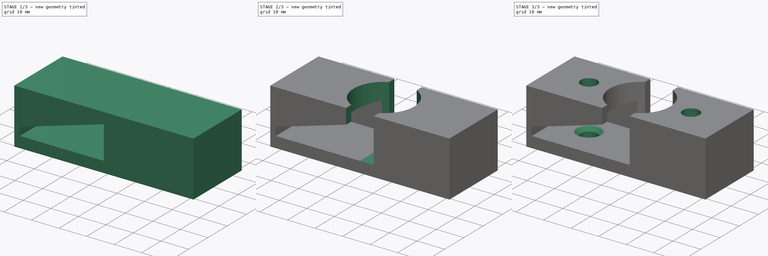
[diagram: build sequence overview — one tinted view per stage of 3, left to right]
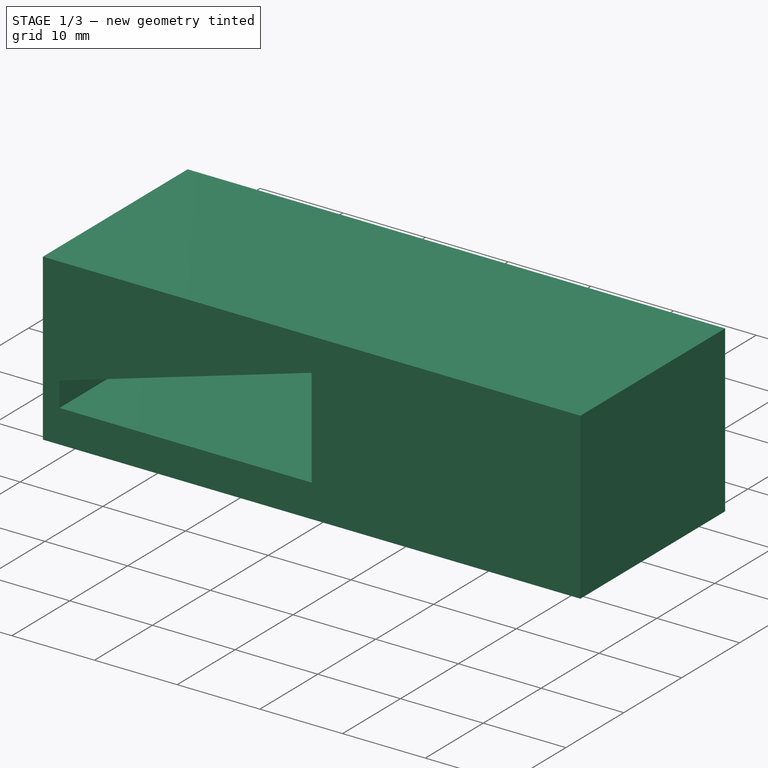
[diagram: stage 1 of 3 — iso view after this stage's code; geometry added in this stage tinted green]
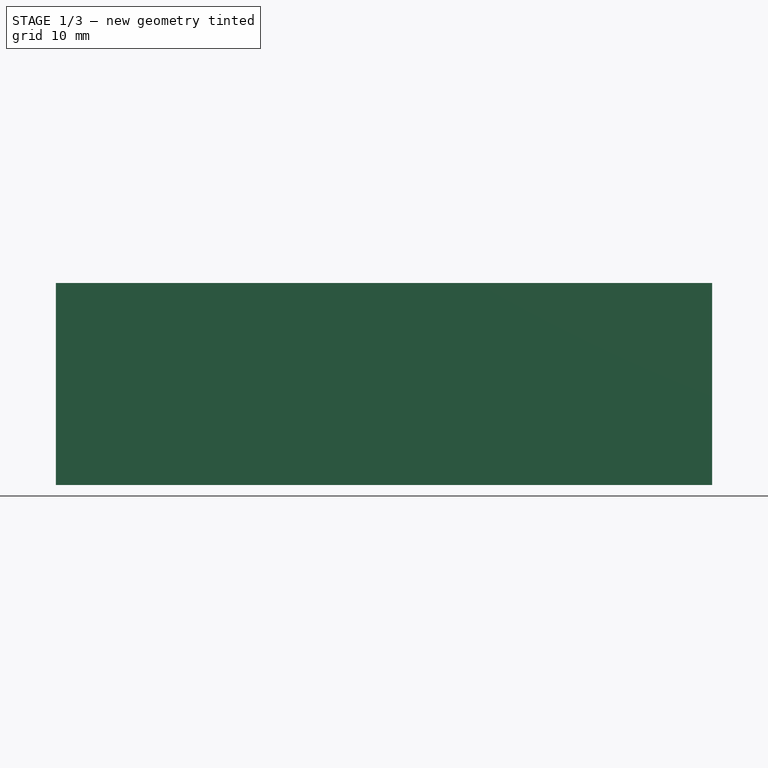
[diagram: stage 1 of 3 — front view after this stage's code; geometry added in this stage tinted green]
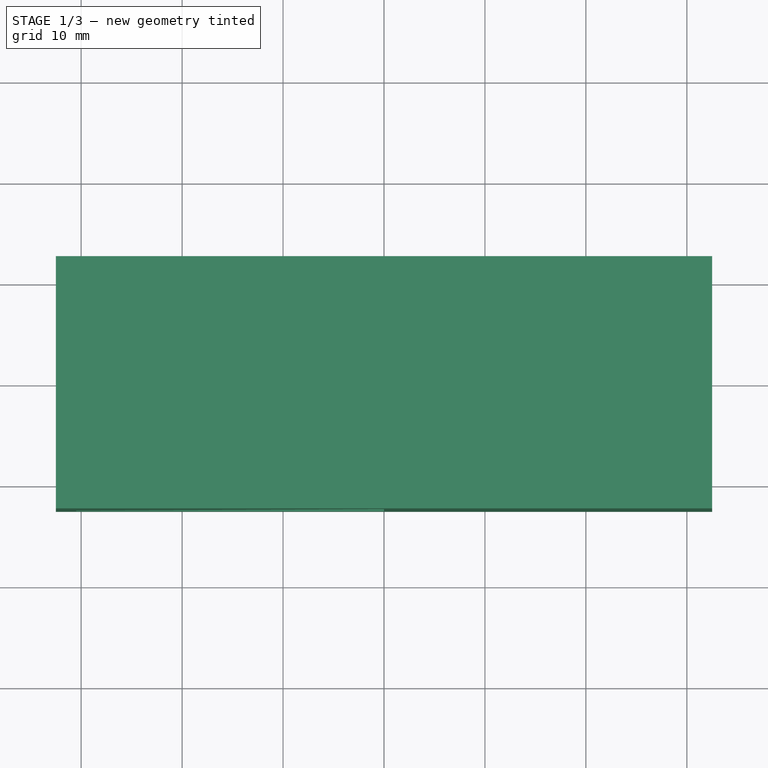
[diagram: stage 1 of 3 — top view after this stage's code; geometry added in this stage tinted green]
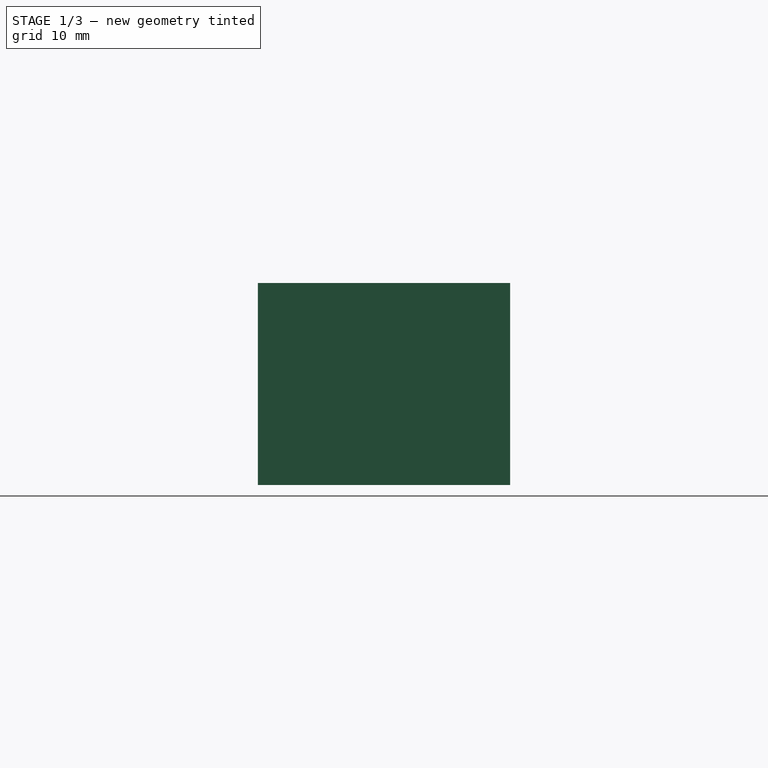
[diagram: stage 1 of 3 — right view after this stage's code; geometry added in this stage tinted green]
FCSTD DOCUMENT  (FreeCAD 0.20R29410 (Git))
Label: Reel_Holder_Symetric_Twist_Parametric
License: All rights reserved
LicenseURL: http://en.wikipedia.org/wiki/All_rights_reserved
objects: Sketcher::SketchObject×6, PartDesign::Pocket×5, App::Part×1, PartDesign::Pad×1, Spreadsheet::Sheet×1, PartDesign::Chamfer×1, PartDesign::Body×1
note: 21 computed .brp shape members not serialized (recipe doc carries the construction recipe); baked Part::Feature solids carry a one-line shape summary decoded from their .brp

FEATURE [App::Part] Part
  Origin = -> Origin
FEATURE [Sketcher::SketchObject] Sketch  label="Sketch_Body"
  FullyConstrained = true
  MapMode = 5
  Support = -> [XY_Plane001]
  expr: Constraints[10] = <<pram>>.Body_Width
  expr: Constraints[9] = <<pram>>.Body_Length
  sketch-geometry (4):
    g0: LineSegment StartX=-32.5 StartY=12.4995 StartZ=0 EndX=32.5 EndY=12.4995 EndZ=0
    g1: LineSegment StartX=32.5 StartY=12.4995 StartZ=0 EndX=32.5 EndY=-12.4995 EndZ=0
    g2: LineSegment StartX=32.5 StartY=-12.4995 StartZ=0 EndX=-32.5 EndY=-12.4995 EndZ=0
    g3: LineSegment StartX=-32.5 StartY=-12.4995 StartZ=0 EndX=-32.5 EndY=12.4995 EndZ=0
  constraints (11):
    c: Coincident(g0,g1)
    c: Coincident(g1,g2)
    c: Coincident(g2,g3)
    c: Coincident(g3,g0)
    c: Horizontal(g0)
    c: Horizontal(g2)
    c: Vertical(g1)
    c: Vertical(g3)
    c: Symmetric(g0,g1,g-1)
    c: DistanceX(g0,g0) = 65
    c: DistanceY(g1,g1) = 24.999
FEATURE [PartDesign::Pad] Pad  label="Pad_Body"
  Direction = (0,0,1)
  Length = 19.999
  Length2 = 10
  Profile = -> Sketch
  ReferenceAxis = -> Sketch [N_Axis]
  Type = 0
  expr: Length = <<pram>>.Body_Height
FEATURE [Sketcher::SketchObject] Sketch001  label="Sketch_Front_Angle_Breach"
  AttachmentOffset = pos=(0,0,-8.4997) rot=(0,0,1;0rad)
  FullyConstrained = true
  MapMode = 5
  Placement = pos=(0,8.4997,1.9e-15) rot=(1,0,0;1.5708rad)
  Support = -> [XZ_Plane001]
  expr: .AttachmentOffset.Base.z = -(<<pram>>.Body_Width / 2 - <<pram>>.Wall_Thickness)
  expr: Constraints[10] = <<pram>>.Body_Height - <<pram>>.Wall_Thickness
  expr: Constraints[11] = <<pram>>.Twist_Opening_Horiz_From_Origin
  expr: Constraints[8] = <<pram>>.Twist_Opening_Vert_Small_Side_Height
  expr: Constraints[9] = <<pram>>.Wall_Thickness
  sketch-geometry (4):
    g0: LineSegment StartX=0 StartY=3.9998 StartZ=0 EndX=-30.5 EndY=3.9998 EndZ=0
    g1: LineSegment StartX=-30.5 StartY=3.9998 StartZ=0 EndX=-30.5 EndY=6.9996 EndZ=0
    g2: LineSegment StartX=-30.5 StartY=6.9996 StartZ=0 EndX=0 EndY=15.9992 EndZ=0
    g3: LineSegment StartX=0 StartY=15.9992 StartZ=0 EndX=0 EndY=3.9998 EndZ=0
  constraints (12):
    c: PointOnObject(g0,g-2)
    c: Horizontal(g0)
    c: Coincident(g0,g1)
    c: Coincident(g1,g2)
    c: PointOnObject(g2,g-2)
    c: Coincident(g2,g3)
    c: Coincident(g3,g0)
    c: Vertical(g0,g1)
    c: DistanceY(g1,g1) = 2.9998
    c: DistanceY(g-1,g0) = 3.9998
    c: DistanceY(g-1,g2) = 15.9992
    c: DistanceX(g0,g-1) = 30.5
FEATURE [PartDesign::Pocket] Pocket  label="Pocket_Front_Angle_Breach"
  BaseFeature = -> Pad
  Direction = (0,1,2e-16)
  Length = 20.9992
  Length2 = 5
  Profile = -> Sketch001
  ReferenceAxis = -> Sketch001 [N_Axis]
  Reversed = true
  Type = 0
  expr: Length = <<pram>>.Body_Width - <<pram>>.Wall_Thickness
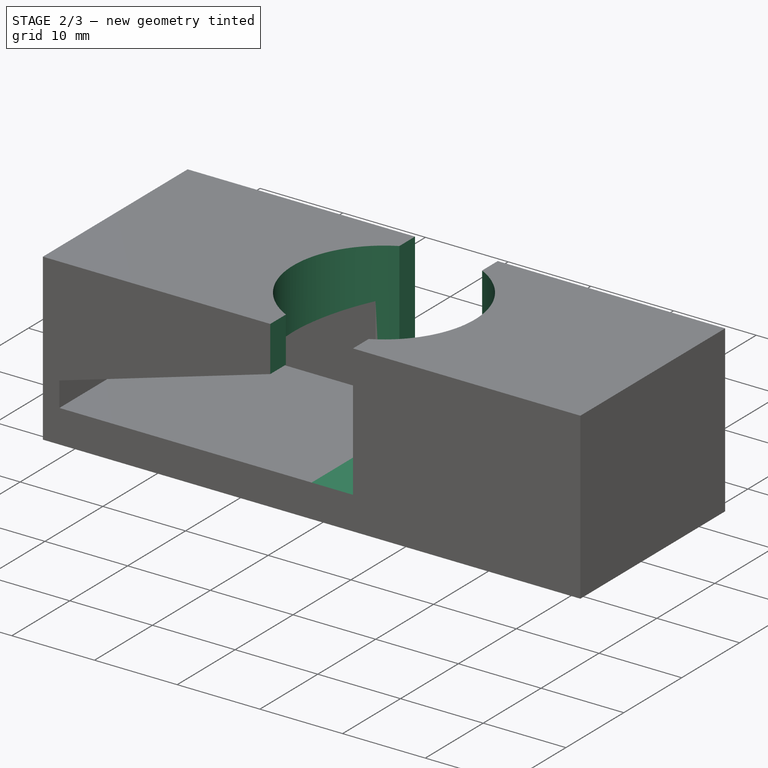
[diagram: stage 2 of 3 — iso view after this stage's code; geometry added in this stage tinted green]
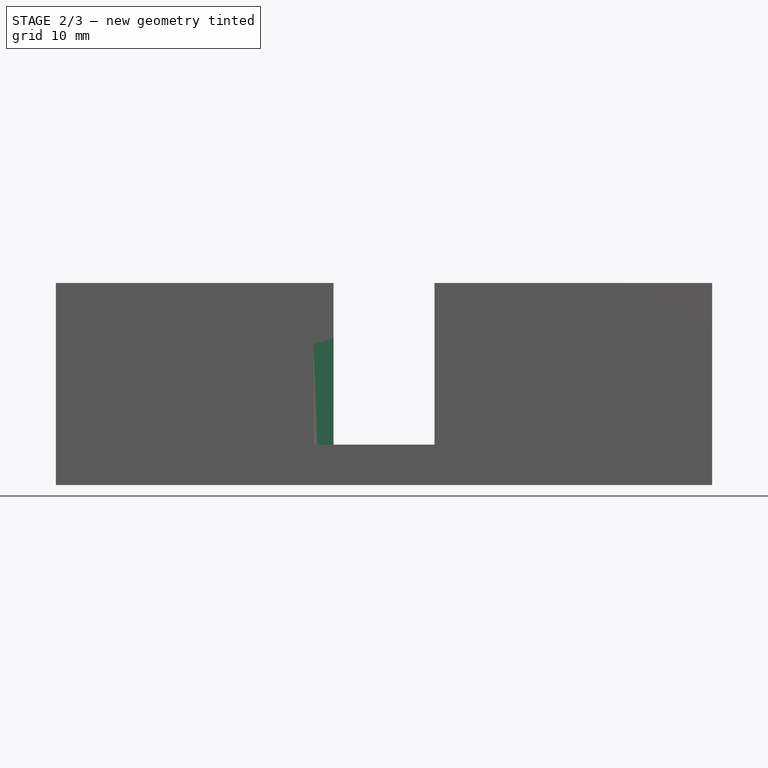
[diagram: stage 2 of 3 — front view after this stage's code; geometry added in this stage tinted green]
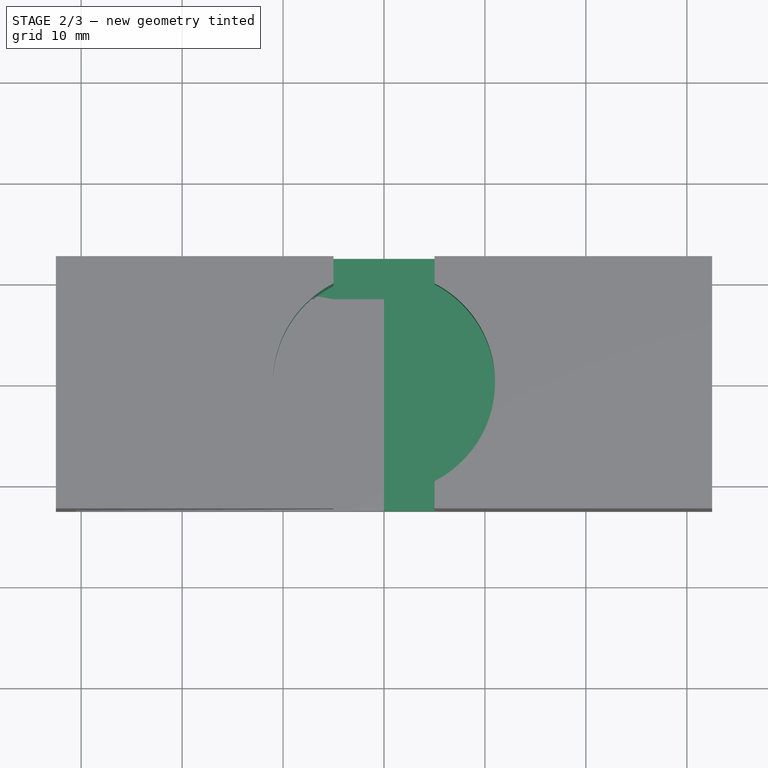
[diagram: stage 2 of 3 — top view after this stage's code; geometry added in this stage tinted green]
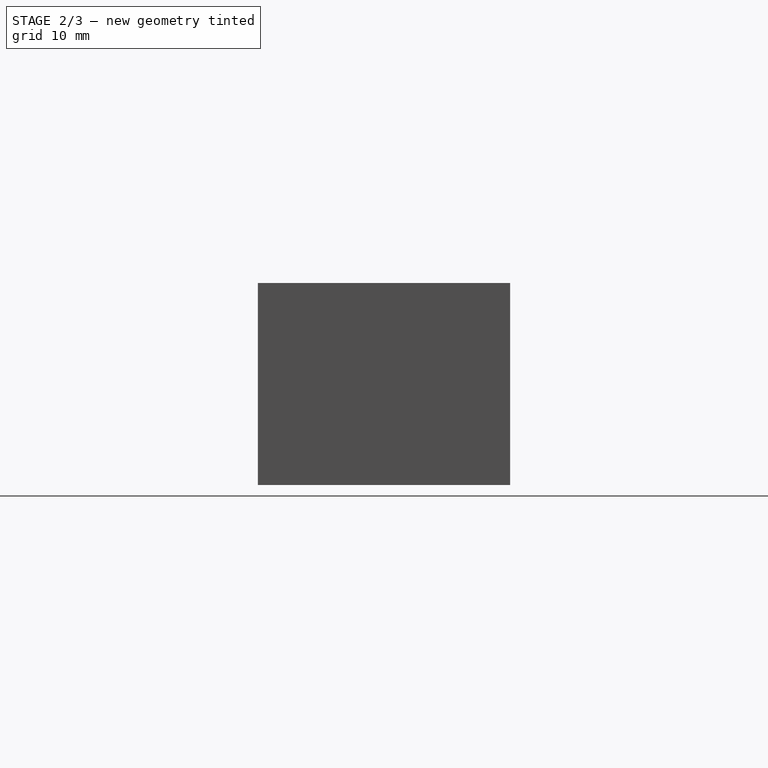
[diagram: stage 2 of 3 — right view after this stage's code; geometry added in this stage tinted green]
FEATURE [Sketcher::SketchObject] Sketch002  label="Sketch_Back_Angle_Breach"
  AttachmentOffset = pos=(0,0,8.4997) rot=(0,0,1;0rad)
  FullyConstrained = true
  MapMode = 5
  Placement = pos=(0,-8.4997,-1.9e-15) rot=(1,0,0;1.5708rad)
  Support = -> [XZ_Plane001]
  expr: .AttachmentOffset.Base.z = <<pram>>.Body_Width / 2 - <<pram>>.Wall_Thickness
  expr: Constraints[10] = <<pram>>.Twist_Opening_Vert_Small_Side_Height
  expr: Constraints[11] = <<pram>>.Twist_Opening_Horiz_From_Origin
  expr: Constraints[8] = <<pram>>.Body_Height - <<pram>>.Wall_Thickness
  expr: Constraints[9] = <<pram>>.Wall_Thickness
  sketch-geometry (4):
    g0: LineSegment StartX=0 StartY=3.9998 StartZ=0 EndX=0 EndY=15.9992 EndZ=0
    g1: LineSegment StartX=0 StartY=15.9992 StartZ=0 EndX=30.5 EndY=6.9996 EndZ=0
    g2: LineSegment StartX=30.5 StartY=6.9996 StartZ=0 EndX=30.5 EndY=3.9998 EndZ=0
    g3: LineSegment StartX=30.5 StartY=3.9998 StartZ=0 EndX=0 EndY=3.9998 EndZ=0
  constraints (12):
    c: PointOnObject(g0,g-2)
    c: Vertical(g0)
    c: Coincident(g0,g1)
    c: Coincident(g1,g2)
    c: Coincident(g2,g3)
    c: Coincident(g3,g0)
    c: Horizontal(g3)
    c: Vertical(g1,g2)
    c: DistanceY(g-1,g0) = 15.9992
    c: DistanceY(g-1,g0) = 3.9998
    c: DistanceY(g2,g1) = 2.9998
    c: DistanceX(g0,g2) = 30.5
FEATURE [PartDesign::Pocket] Pocket001  label="Pocket_Back_Angle_Breach"
  BaseFeature = -> Pocket
  Direction = (0,1,2e-16)
  Length = 20.9992
  Length2 = 5
  Profile = -> Sketch002
  ReferenceAxis = -> Sketch002 [N_Axis]
  Type = 0
  expr: Length = <<pram>>.Body_Width - <<pram>>.Wall_Thickness
FEATURE [Sketcher::SketchObject] Sketch003  label="Sketch_Circular_Opening"
  AttachmentOffset = pos=(0,0,19.999) rot=(0,0,1;0rad)
  FullyConstrained = true
  MapMode = 5
  Placement = pos=(0,0,19.999) rot=(0,0,1;0rad)
  Support = -> [XY_Plane001]
  expr: .AttachmentOffset.Base.z = <<pram>>.Body_Height
  expr: Constraints[1] = <<pram>>.Circular_Opening_Diameter
  sketch-geometry (1):
    g0: Circle CenterX=0 CenterY=0 CenterZ=0 NormalX=0 NormalY=0 NormalZ=1 AngleXU=0 Radius=10.9995
  constraints (2):
    c: Coincident(g0,g-1)
    c: Diameter(g0) = 21.999
FEATURE [PartDesign::Pocket] Pocket002  label="Pocket_Circular_Opening"
  BaseFeature = -> Pocket001
  Direction = (0,0,-1)
  Length = 15.9992
  Length2 = 5
  Profile = -> Sketch003
  ReferenceAxis = -> Sketch003 [N_Axis]
  Type = 0
  expr: Length = <<pram>>.Body_Height - <<pram>>.Wall_Thickness
FEATURE [Sketcher::SketchObject] Sketch004  label="Sketch_Through_Cut"
  FullyConstrained = true
  MapMode = 5
  Placement = pos=(0,0,0) rot=(1,0,0;1.5708rad)
  Support = -> [XZ_Plane001]
  expr: Constraints[10] = <<pram>>.Through_Cut_Height
  expr: Constraints[8] = <<pram>>.Wall_Thickness
  expr: Constraints[9] = <<pram>>.Through_Cut_Width
  sketch-geometry (4):
    g0: LineSegment StartX=-4.99975 StartY=19.999 StartZ=0 EndX=4.99975 EndY=19.999 EndZ=0
    g1: LineSegment StartX=4.99975 StartY=19.999 StartZ=0 EndX=4.99975 EndY=3.9998 EndZ=0
    g2: LineSegment StartX=4.99975 StartY=3.9998 StartZ=0 EndX=-4.99975 EndY=3.9998 EndZ=0
    g3: LineSegment StartX=-4.99975 StartY=3.9998 StartZ=0 EndX=-4.99975 EndY=19.999 EndZ=0
  constraints (11):
    c: Coincident(g0,g1)
    c: Coincident(g1,g2)
    c: Coincident(g2,g3)
    c: Coincident(g3,g0)
    c: Horizontal(g2)
    c: Vertical(g1)
    c: Vertical(g3)
    c: Symmetric(g0,g0,g-2)
    c: DistanceY(g-1,g1) = 3.9998
    c: DistanceX(g0,g0) = 9.9995
    c: DistanceY(g1,g1) = 15.9992
FEATURE [PartDesign::Pocket] Pocket003  label="Pocket_Through_Cut"
  BaseFeature = -> Pocket002
  Direction = (0,1,2e-16)
  Length = 12.4995
  Length2 = 5
  Midplane = true
  Profile = -> Sketch004
  ReferenceAxis = -> Sketch004 [N_Axis]
  Type = 1
  expr: Length = <<pram>>.Body_Width / 2
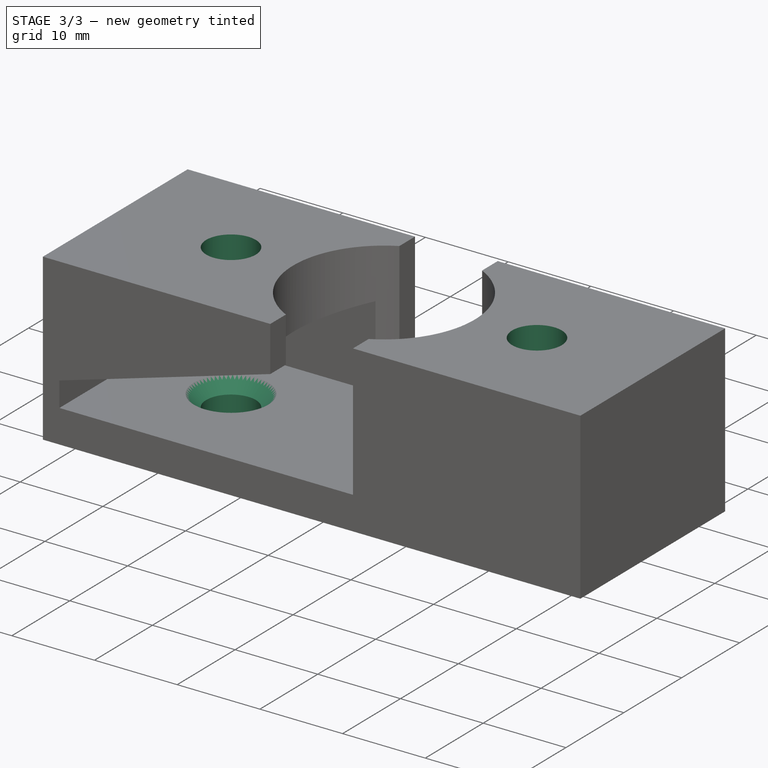
[diagram: stage 3 of 3 — iso view after this stage's code; geometry added in this stage tinted green]
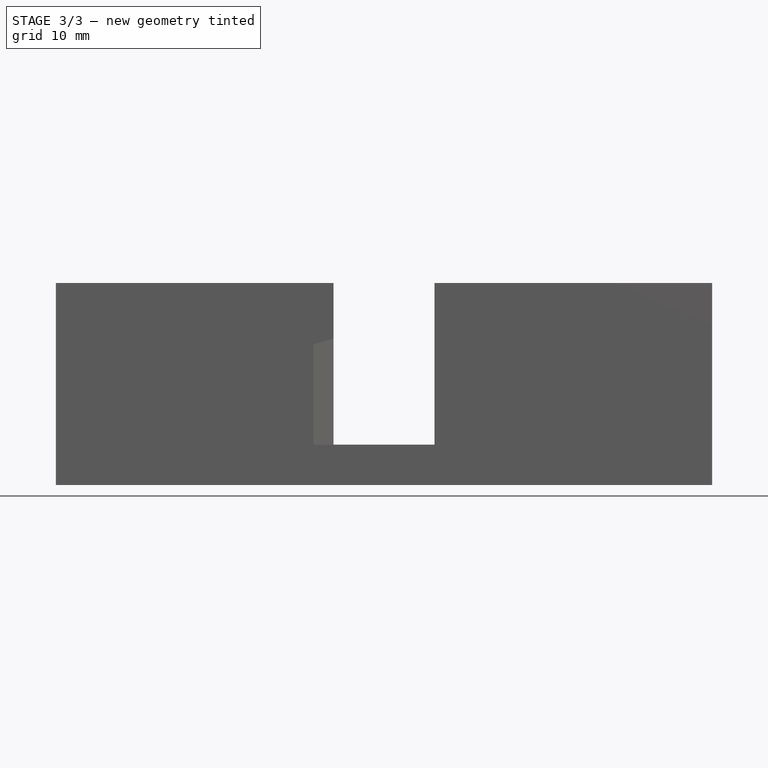
[diagram: stage 3 of 3 — front view after this stage's code; geometry added in this stage tinted green]
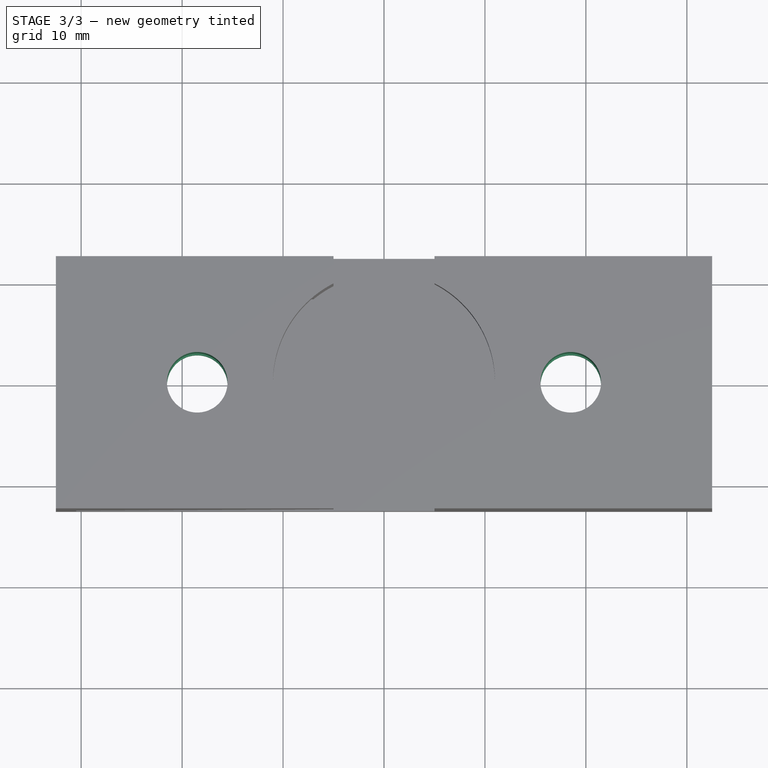
[diagram: stage 3 of 3 — top view after this stage's code; geometry added in this stage tinted green]
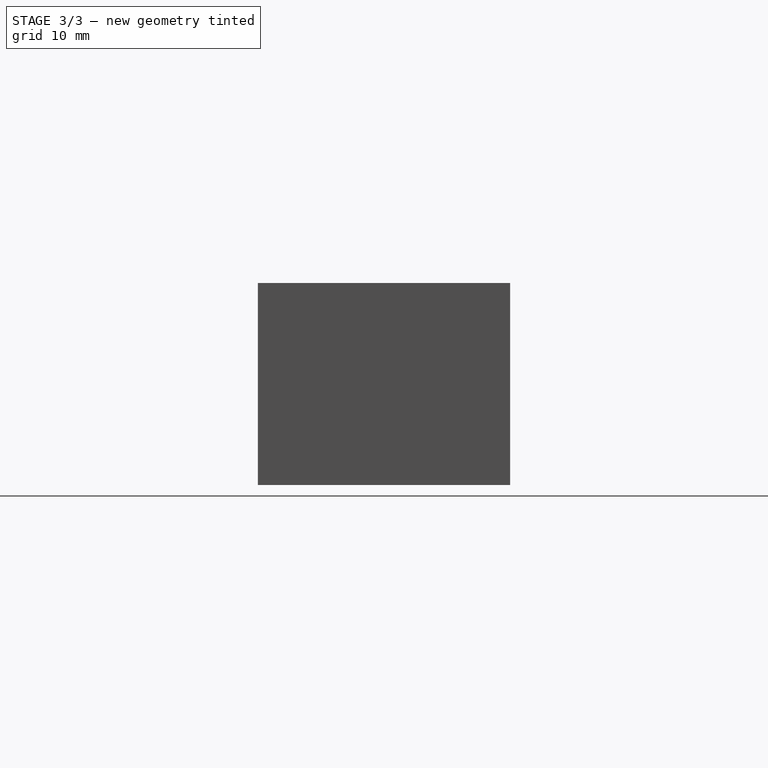
[diagram: stage 3 of 3 — right view after this stage's code; geometry added in this stage tinted green]
FEATURE [Sketcher::SketchObject] Sketch005  label="Sketch_Screw_Holes"
  AttachmentOffset = pos=(0,0,19.999) rot=(0,0,1;0rad)
  FullyConstrained = true
  MapMode = 5
  Placement = pos=(0,0,19.999) rot=(0,0,1;0rad)
  Support = -> [XY_Plane001]
  expr: .AttachmentOffset.Base.z = <<pram>>.Body_Height
  expr: Constraints[2] = <<pram>>.Drill_Holes_Diameter
  expr: Constraints[4] = <<pram>>.Drill_Holes_Horiz_From_Origin + <<pram>>.Drill_Holes_Diameter / 4
  sketch-geometry (2):
    g0: Circle CenterX=-18.5 CenterY=0 CenterZ=0 NormalX=0 NormalY=0 NormalZ=1 AngleXU=0 Radius=3
    g1: Circle CenterX=18.5 CenterY=0 CenterZ=0 NormalX=0 NormalY=0 NormalZ=1 AngleXU=0 Radius=3
  constraints (5):
    c: PointOnObject(g0,g-1)
    c: Equal(g0,g1)
    c: Diameter(g1) = 6
    c: Symmetric(g1,g0,g-1)
    c: DistanceX(g0,g-1) = 18.5
FEATURE [PartDesign::Pocket] Pocket004  label="Pocket_Screw_Holes"
  BaseFeature = -> Pocket003
  Direction = (0,0,-1)
  Length = 5
  Length2 = 5
  Profile = -> Sketch005
  ReferenceAxis = -> Sketch005 [N_Axis]
  Type = 1
FEATURE [Spreadsheet::Sheet] Spreadsheet  label="pram"
  cells = A1=Body_Length (Change This Cell or B11 Only); B1(Body_Length)=65; C1=Safe range should be 50.00mm - 85.00mm. Modeled @ 65.00mm. Inner length will be 4mm less than this Number (B1).; A2=Body_Width; B2(Body_Width)==Body_Length * 0.3846; C2=Calculated. Do not change!; A3=Body_Height; B3(Body_Height)==Body_Width - 5; C3=Calculated. Do not change!; A4=Wall_Thickness; B4(Wall_Thickness)==Body_Height / 5; C4=Calculated. Do not change!; A5=Twist_Opening_Vert_Small_Side_Height; B5(Twist_Opening_Vert_Small_Side_Height)==Wall_Thickness - 1; C5=Calculated. Do not change!; A6=Twist_Opening_Horiz_From_Origin; B6(Twist_Opening_Horiz_From_Origin)==Body_Length / 2 - 2; C6=Calculated. Do not change!; A7=Circular_Opening_Diameter; B7(Circular_Opening_Diameter)==Body_Width - 3; C7=Calculated. Do not change!; A8=Through_Cut_Width; B8(Through_Cut_Width)==Body_Height / 2; C8=Calculated. Do not change!; A9=Through_Cut_Height; B9(Through_Cut_Height)==Body_Height - Wall_Thickness; C9=Calculated. Do not change!; A10=Drill_Holes_Horiz_From_Origin; B10(Drill_Holes_Horiz_From_Origin)==Body_Length / 4 + 0.75; C10=Calculated. Do not change!; A11=Drill_Holes_Diameter (Change This Cell or B1 Only); B11(Drill_Holes_Diameter)=6; C11=Safe Range should be 3mm - 10mm. Modeled @ 6mm.
FEATURE [PartDesign::Chamfer] Chamfer
  Angle = 45
  Base = -> Pocket004 [Edge59,Edge39]
  BaseFeature = -> Pocket004
  ChamferType = 0
  FlipDirection = false
  Size = 1.5
  Size2 = 1
  SupportTransform = false
  UseAllEdges = false
  expr: Size = <<pram>>.Drill_Holes_Diameter * 0.25
FEATURE [PartDesign::Body] Body
  Group = -> [Sketch,Pad,Sketch001,Pocket,Sketch002,Pocket001,Sketch003,Pocket002,Sketch004,Pocket003,Sketch005,Pocket004,Chamfer]
  Origin = -> Origin001
  Tip = -> Chamfer
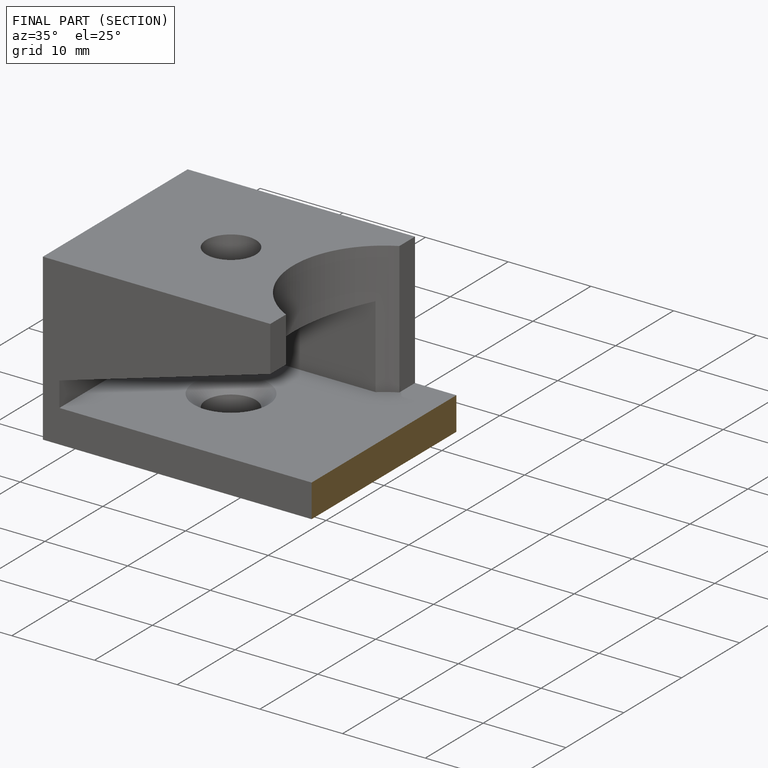
[diagram: finished part — half-section view (interior)]
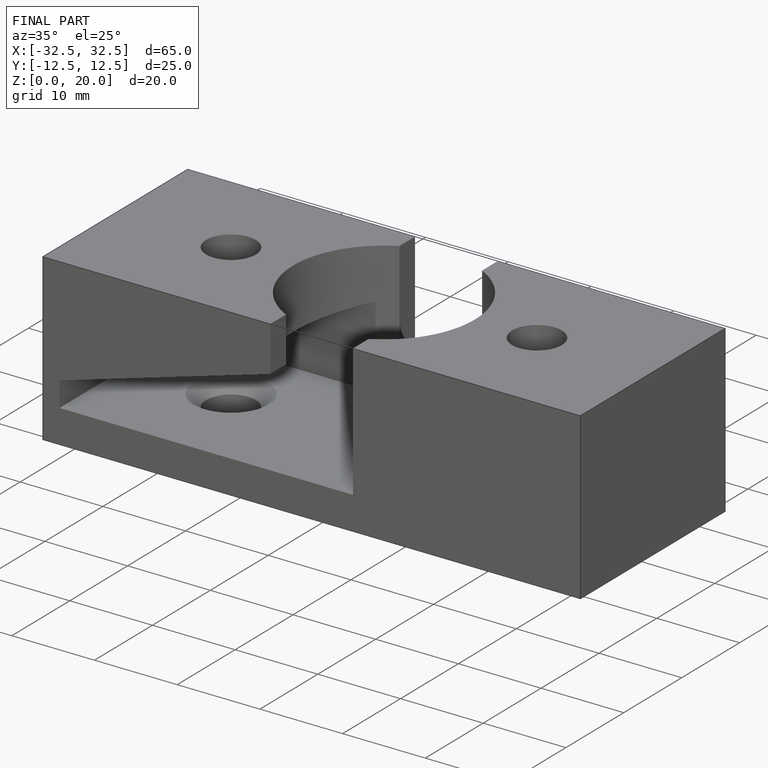
[diagram: finished part — iso view with bounding-box wireframe]
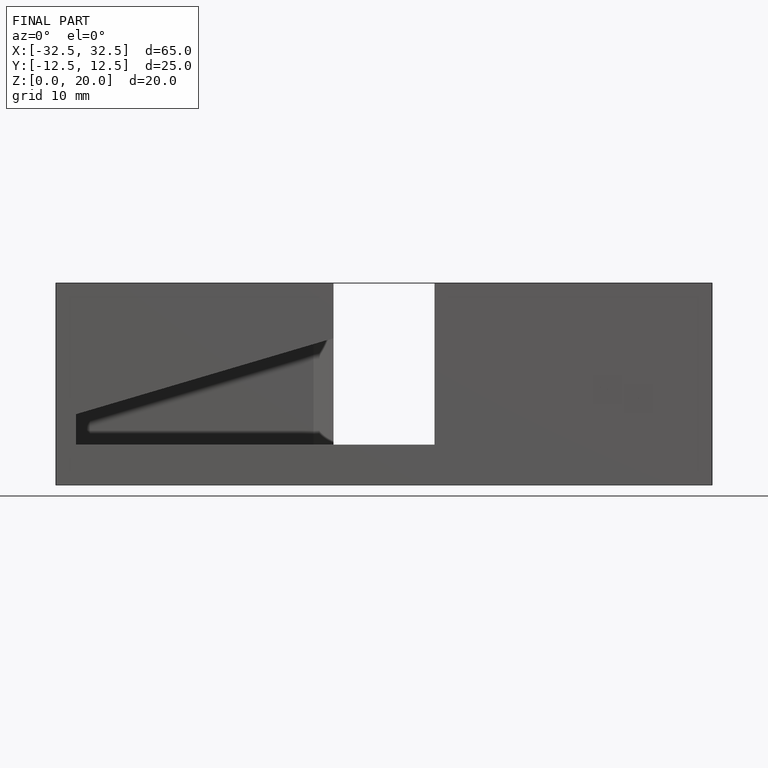
[diagram: finished part — front view with bounding-box wireframe]
